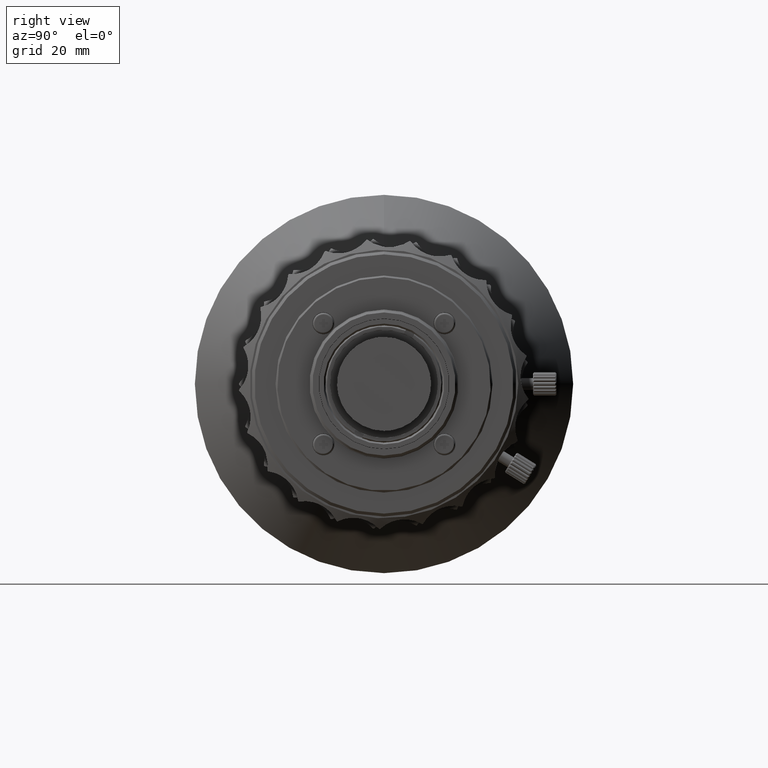
[diagram: clean part render]
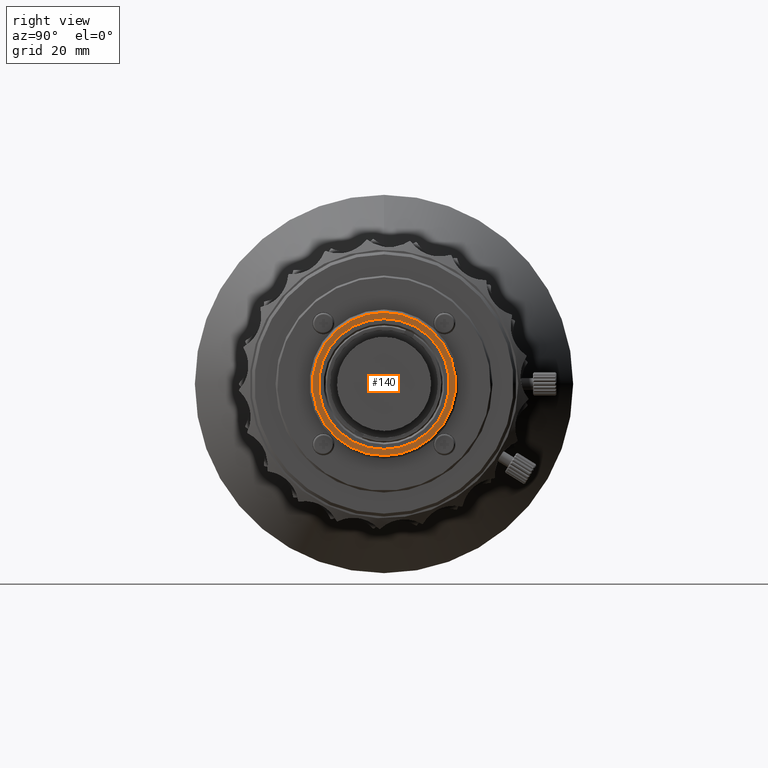
[diagram: same view with one face highlighted and labeled with its STEP entity id]
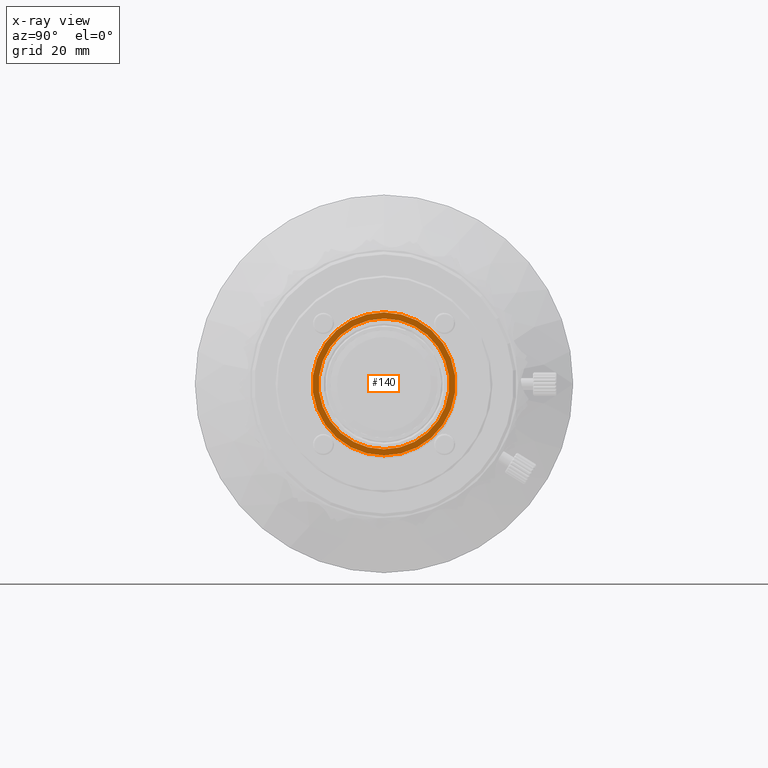
[diagram: x-ray of the same camera — body ghosted, the highlighted face saturated]
A machine part, right view. The second image highlights one B-rep face of the part: STEP entity #140.
The next image is the same camera in x-ray: the body ghosted, the highlighted face saturated — about 0% of this face is hidden behind the body in this view.
In plain terms, the highlighted planar face has unit normal (1, 0, -0).
Its self-contained STEP definition (entity closure, byte-faithful):
#140 = ADVANCED_FACE ( 'NONE', ( #70744, #12802 ), #57633, .T. ) ;
#3292 = AXIS2_PLACEMENT_3D ( 'NONE', #4082, #41771, #42181 ) ;
#4082 = CARTESIAN_POINT ( 'NONE',  ( 31.96591036054335788, 0.000000000000000000, 0.000000000000000000 ) ) ;
#4632 = CIRCLE ( 'NONE', #3292, 12.19999796694581917 ) ;
#12802 = FACE_BOUND ( 'NONE', #76484, .T. ) ;
#15473 = AXIS2_PLACEMENT_3D ( 'NONE', #83491, #51275, #38599 ) ;
#21150 = CIRCLE ( 'NONE', #63046, 11.14999999999963265 ) ;
#25316 = CARTESIAN_POINT ( 'NONE',  ( 31.96591036054335788, 0.000000000000000000, 12.19999796694581917 ) ) ;
#33174 = DIRECTION ( 'NONE',  ( -1.000000000000000000, 0.000000000000000000, 0.000000000000000000 ) ) ;
#33685 = ORIENTED_EDGE ( 'NONE', *, *, #50176, .T. ) ;
#37464 = VERTEX_POINT ( 'NONE', #68348 ) ;
#38599 = DIRECTION ( 'NONE',  ( -0.000000000000000000, 0.000000000000000000, -1.000000000000000000 ) ) ;
#41771 = DIRECTION ( 'NONE',  ( 1.000000000000000000, -0.000000000000000000, -0.000000000000000000 ) ) ;
#42181 = DIRECTION ( 'NONE',  ( 0.000000000000000000, 0.000000000000000000, 1.000000000000000000 ) ) ;
#49082 = ORIENTED_EDGE ( 'NONE', *, *, #74365, .T. ) ;
#50176 = EDGE_CURVE ( 'NONE', #50247, #50247, #4632, .T. ) ;
#50247 = VERTEX_POINT ( 'NONE', #25316 ) ;
#51275 = DIRECTION ( 'NONE',  ( 1.000000000000000000, 0.000000000000000000, -0.000000000000000000 ) ) ;
#53022 = CARTESIAN_POINT ( 'NONE',  ( 31.96591036054335788, 0.000000000000000000, 0.000000000000000000 ) ) ;
#57633 = PLANE ( 'NONE',  #15473 ) ;
#59389 = DIRECTION ( 'NONE',  ( 0.000000000000000000, 0.000000000000000000, -1.000000000000000000 ) ) ;
#63046 = AXIS2_PLACEMENT_3D ( 'NONE', #53022, #33174, #59389 ) ;
#65022 = EDGE_LOOP ( 'NONE', ( #33685 ) ) ;
#68348 = CARTESIAN_POINT ( 'NONE',  ( 31.96591036054335788, 0.000000000000000000, -11.14999999999963265 ) ) ;
#70744 = FACE_OUTER_BOUND ( 'NONE', #65022, .T. ) ;
#74365 = EDGE_CURVE ( 'NONE', #37464, #37464, #21150, .T. ) ;
#76484 = EDGE_LOOP ( 'NONE', ( #49082 ) ) ;
#83491 = CARTESIAN_POINT ( 'NONE',  ( 31.96591036054335788, 11.14999999999963265, 0.000000000000000000 ) ) ;